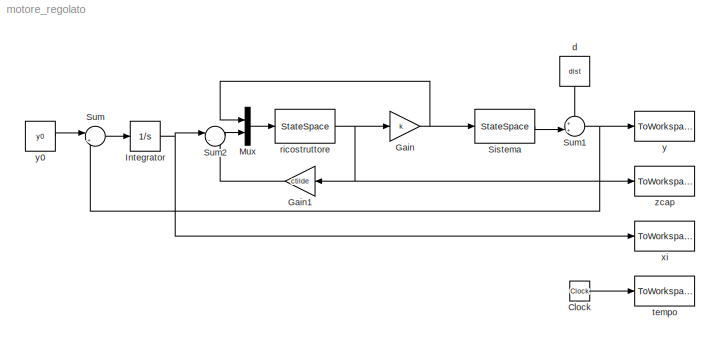
MODEL motore_regolato
KIND model
BLOCK [Clock] Clock
  Decimation = 10
  SID = 4
BLOCK [Gain] Gain
  Gain = k
  Multiplication = Matrix(K*u)
  OutDataTypeStr = Inherit: Inherit via internal rule
  ParamDataTypeStr = Inherit: Inherit via internal rule
  SID = 9
  SaturateOnIntegerOverflow = off
BLOCK [Gain] Gain1
  Gain = ctilde
  Multiplication = Matrix(K*u)
  OutDataTypeStr = Inherit: Inherit via internal rule
  ParamDataTypeStr = Inherit: Inherit via internal rule
  SID = 21
  SaturateOnIntegerOverflow = off
BLOCK [Integrator] Integrator
  Ports = [1, 1]
  SID = 8
BLOCK [Mux] Mux
  DisplayOption = bar
  Inputs = 2
  Ports = [2, 1]
  SID = 10
BLOCK [StateSpace] Sistema
  A = -h/J
  B = nu/J
  D = 0
  SID = 1
BLOCK [Sum] Sum
  IconShape = round
  InputSameDT = off
  Inputs = |+-
  OutDataTypeStr = Inherit: Inherit via internal rule
  Ports = [2, 1]
  SID = 7
  SaturateOnIntegerOverflow = off
BLOCK [Sum] Sum1
  IconShape = round
  InputSameDT = off
  Inputs = ++|
  OutDataTypeStr = Inherit: Inherit via internal rule
  Ports = [2, 1]
  SID = 25
  SaturateOnIntegerOverflow = off
BLOCK [Sum] Sum2
  IconShape = round
  InputSameDT = off
  Inputs = |-+
  OutDataTypeStr = Inherit: Inherit via internal rule
  Ports = [2, 1]
  SID = 17
  SaturateOnIntegerOverflow = off
BLOCK [Constant] d
  SID = 24
  Value = dist
BLOCK [StateSpace] ricostruttore
  A = Atilde
  B = [btilde l]
  C = [1 0; 0 1]
  D = [0 0; 0 0]
  SID = 3
  X0 = [0 0]'
BLOCK [ToWorkspace] tempo
  MaxDataPoints = inf
  Ports = [1]
  SID = 11
  SampleTime = -1
  SaveFormat = Array
  VariableName = t
BLOCK [ToWorkspace] xi
  MaxDataPoints = inf
  Ports = [1]
  SID = 13
  SampleTime = -1
  SaveFormat = Array
  VariableName = xi
BLOCK [ToWorkspace] y
  MaxDataPoints = inf
  Ports = [1]
  SID = 6
  SampleTime = -1
  SaveFormat = Array
  VariableName = y
BLOCK [Constant] y0
  SID = 5
  Value = y0
BLOCK [ToWorkspace] zcap
  MaxDataPoints = inf
  Ports = [1]
  SID = 12
  SampleTime = -1
  SaveFormat = Array
  VariableName = zcap
LINE Clock:1 -> tempo:1
LINE Gain1:1 -> Sum2:2
NET Gain:1 -> Mux:1, Sistema:1
NET Integrator:1 -> Sum2:1, xi:1
LINE Mux:1 -> ricostruttore:1
LINE Sistema:1 -> Sum1:2
NET Sum1:1 -> Sum:2, y:1
LINE Sum2:1 -> Mux:2
LINE Sum:1 -> Integrator:1
LINE d:1 -> Sum1:1
NET ricostruttore:1 -> Gain1:1, Gain:1, zcap:1
LINE y0:1 -> Sum:1
note: NET lines group one-source signal fan-out (src -> all destinations, sorted); 1:1 wires keep LINE
